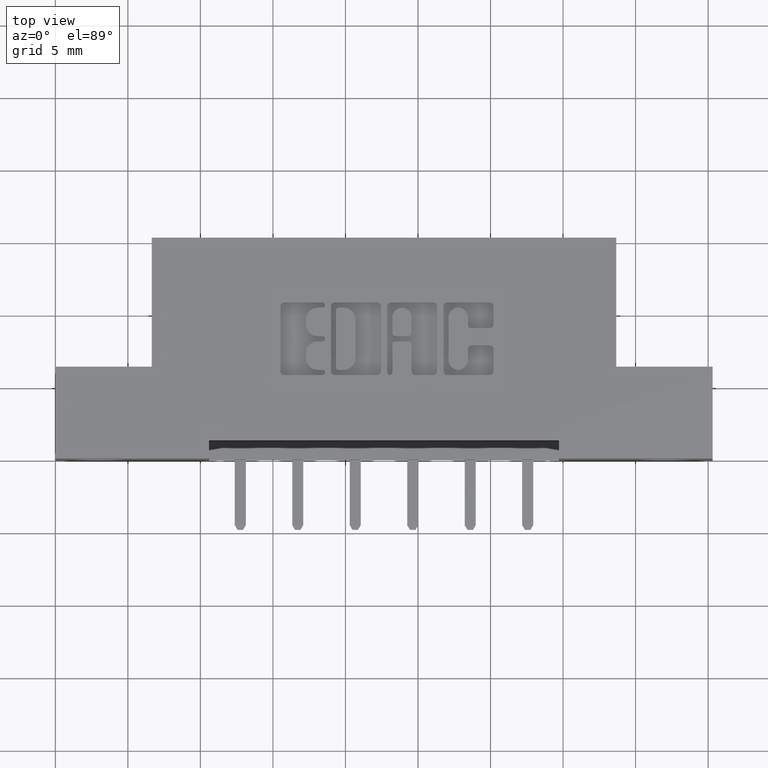
[diagram: clean part render]
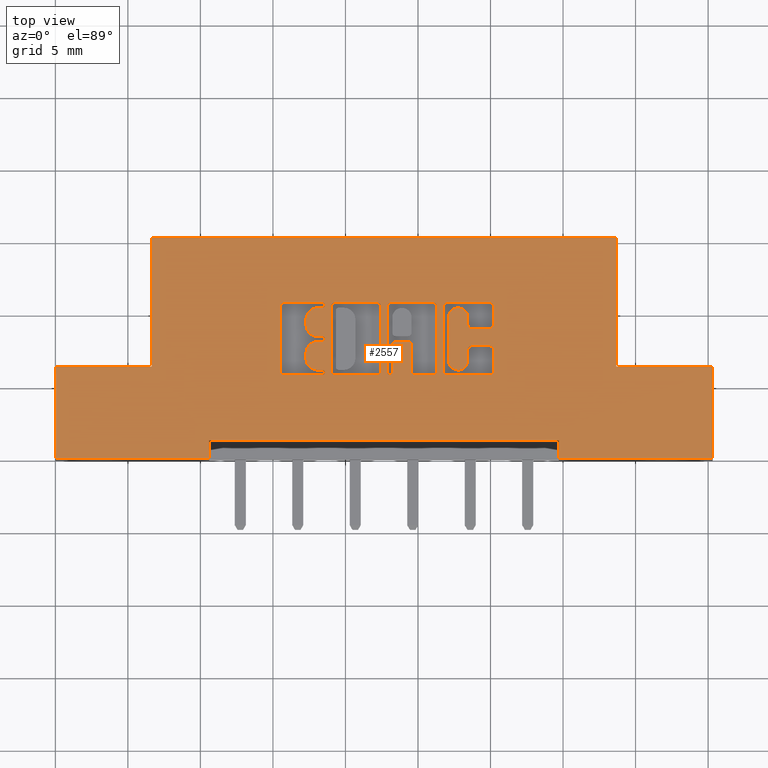
[diagram: same view with one face highlighted and labeled with its STEP entity id]
A machine part, top view. The second image highlights one B-rep face of the part: STEP entity #2557.
In plain terms, the highlighted planar face has unit normal (0, 0, -1).
Its self-contained STEP definition (entity closure, byte-faithful):
#25 = VECTOR ( 'NONE', #2022, 39.37007874015748100 ) ;
#40 = DIRECTION ( 'NONE',  ( 0.0000000000000000000, -1.000000000000000000, 0.0000000000000000000 ) ) ;
#65 = EDGE_CURVE ( 'NONE', #7483, #5534, #4787, .T. ) ;
#74 = CARTESIAN_POINT ( 'NONE',  ( 0.7251336065353351000, 0.2337142671046476800, 0.0000000000000000000 ) ) ;
#83 = EDGE_CURVE ( 'NONE', #6657, #2010, #6764, .T. ) ;
#118 = CARTESIAN_POINT ( 'NONE',  ( 0.7251336065353095600, 0.3250000000000201100, 0.0000000000000000000 ) ) ;
#183 = CARTESIAN_POINT ( 'NONE',  ( 1.053222383097458100, 0.0000000000000000000, 0.0000000000000000000 ) ) ;
#199 = LINE ( 'NONE', #6380, #4181 ) ;
#209 = CARTESIAN_POINT ( 'NONE',  ( 0.2615000000000001200, 0.5999999999999999800, 0.0000000000000000000 ) ) ;
#211 = CARTESIAN_POINT ( 'NONE',  ( 0.7251336065353509700, 0.4094147637527354400, 0.0000000000000000000 ) ) ;
#226 = VERTEX_POINT ( 'NONE', #2080 ) ;
#239 = VERTEX_POINT ( 'NONE', #8214 ) ;
#274 = CARTESIAN_POINT ( 'NONE',  ( 0.7320045756779973700, 0.2337142671046476800, 0.0000000000000000000 ) ) ;
#277 = CARTESIAN_POINT ( 'NONE',  ( 1.188678631909971600, 0.4133410318341945700, 0.0000000000000000000 ) ) ;
#283 = ORIENTED_EDGE ( 'NONE', *, *, #9427, .F. ) ;
#287 = LINE ( 'NONE', #7453, #6491 ) ;
#300 = VECTOR ( 'NONE', #7128, 39.37007874015748100 ) ;
#315 = CARTESIAN_POINT ( 'NONE',  ( 0.7116370600051091800, 0.2719953808994901000, 0.0000000000000000000 ) ) ;
#336 = LINE ( 'NONE', #2064, #1848 ) ;
#342 = DIRECTION ( 'NONE',  ( 1.000000000000000000, 0.0000000000000000000, 0.0000000000000000000 ) ) ;
#353 = DIRECTION ( 'NONE',  ( -0.0000000000000000000, 0.0000000000000000000, 1.000000000000000000 ) ) ;
#371 = DIRECTION ( 'NONE',  ( 1.000000000000000000, 0.0000000000000000000, 0.0000000000000000000 ) ) ;
#394 = DIRECTION ( 'NONE',  ( -0.0000000000000000000, 0.0000000000000000000, 1.000000000000000000 ) ) ;
#400 = LINE ( 'NONE', #6370, #1383 ) ;
#421 = VECTOR ( 'NONE', #6822, 39.37007874015748100 ) ;
#431 = CARTESIAN_POINT ( 'NONE',  ( 0.8735956183678956800, 0.4231567020380507800, 0.0000000000000000000 ) ) ;
#433 = CIRCLE ( 'NONE', #7790, 0.009815670203840084000 ) ;
#495 = EDGE_CURVE ( 'NONE', #7950, #5860, #8939, .T. ) ;
#506 = VERTEX_POINT ( 'NONE', #4428 ) ;
#523 = ORIENTED_EDGE ( 'NONE', *, *, #3593, .T. ) ;
#533 = CARTESIAN_POINT ( 'NONE',  ( 0.7116370600050836400, 0.3181290308573565500, 0.0000000000000000000 ) ) ;
#543 = VECTOR ( 'NONE', #4309, 39.37007874015748100 ) ;
#551 = ORIENTED_EDGE ( 'NONE', *, *, #2189, .F. ) ;
#574 = CARTESIAN_POINT ( 'NONE',  ( 0.9143306497136465300, 0.3083133606535453100, 0.0000000000000000000 ) ) ;
#582 = CARTESIAN_POINT ( 'NONE',  ( 1.119478156973178700, 0.0000000000000000000, 0.0000000000000000000 ) ) ;
#590 = DIRECTION ( 'NONE',  ( 1.000000000000000000, 0.0000000000000000000, 0.0000000000000000000 ) ) ;
#686 = DIRECTION ( 'NONE',  ( 0.0000000000000000000, -1.000000000000000000, 0.0000000000000000000 ) ) ;
#693 = EDGE_CURVE ( 'NONE', #4471, #6657, #7811, .T. ) ;
#715 = VERTEX_POINT ( 'NONE', #9376 ) ;
#781 = EDGE_CURVE ( 'NONE', #1642, #8523, #1366, .T. ) ;
#804 = VECTOR ( 'NONE', #4935, 39.37007874015748100 ) ;
#812 = AXIS2_PLACEMENT_3D ( 'NONE', #2226, #7454, #2979 ) ;
#830 = VERTEX_POINT ( 'NONE', #5482 ) ;
#857 = VERTEX_POINT ( 'NONE', #3357 ) ;
#863 = VERTEX_POINT ( 'NONE', #4177 ) ;
#865 = DIRECTION ( 'NONE',  ( 1.000000000000000000, 0.0000000000000000000, 0.0000000000000000000 ) ) ;
#870 = DIRECTION ( 'NONE',  ( 1.000000000000000000, 0.0000000000000000000, 0.0000000000000000000 ) ) ;
#879 = EDGE_CURVE ( 'NONE', #5562, #2332, #8369, .T. ) ;
#896 = CARTESIAN_POINT ( 'NONE',  ( 0.7577707099629755700, 0.2268432979619829400, 0.0000000000000000000 ) ) ;
#901 = VECTOR ( 'NONE', #5372, 39.37007874015748100 ) ;
#911 = EDGE_CURVE ( 'NONE', #9290, #8523, #4432, .T. ) ;
#943 = EDGE_CURVE ( 'NONE', #2279, #5288, #9393, .T. ) ;
#968 = LINE ( 'NONE', #7753, #4260 ) ;
#985 = AXIS2_PLACEMENT_3D ( 'NONE', #9273, #4870, #371 ) ;
#997 = LINE ( 'NONE', #8017, #543 ) ;
#1010 = VECTOR ( 'NONE', #8657, 39.37007874015748100 ) ;
#1022 = ORIENTED_EDGE ( 'NONE', *, *, #2823, .F. ) ;
#1027 = AXIS2_PLACEMENT_3D ( 'NONE', #3047, #8255, #3816 ) ;
#1034 = DIRECTION ( 'NONE',  ( 1.000000000000000000, 0.0000000000000000000, 0.0000000000000000000 ) ) ;
#1047 = VECTOR ( 'NONE', #5826, 39.37007874015748100 ) ;
#1053 = ORIENTED_EDGE ( 'NONE', *, *, #83, .F. ) ;
#1084 = LINE ( 'NONE', #9057, #4860 ) ;
#1087 = VECTOR ( 'NONE', #1982, 39.37007874015748100 ) ;
#1088 = CIRCLE ( 'NONE', #8526, 0.009815670203788042300 ) ;
#1106 = ORIENTED_EDGE ( 'NONE', *, *, #65, .F. ) ;
#1117 = CARTESIAN_POINT ( 'NONE',  ( 0.7479550397591688800, 0.2366589681657896800, 0.0000000000000000000 ) ) ;
#1121 = DIRECTION ( 'NONE',  ( 1.000000000000000000, 0.0000000000000000000, 0.0000000000000000000 ) ) ;
#1143 = CARTESIAN_POINT ( 'NONE',  ( 0.4174999999999998700, 0.0000000000000000000, 0.0000000000000000000 ) ) ;
#1149 = CARTESIAN_POINT ( 'NONE',  ( 1.093221239177991900, 0.3831578459575293300, 0.0000000000000000000 ) ) ;
#1161 = DIRECTION ( 'NONE',  ( -1.000000000000000000, 0.0000000000000000000, 0.0000000000000000000 ) ) ;
#1192 = ORIENTED_EDGE ( 'NONE', *, *, #8260, .F. ) ;
#1215 = CARTESIAN_POINT ( 'NONE',  ( 0.0000000000000000000, 0.5999999999999999800, 0.0000000000000000000 ) ) ;
#1247 = EDGE_CURVE ( 'NONE', #863, #226, #9048, .T. ) ;
#1284 = CARTESIAN_POINT ( 'NONE',  ( 1.036044960240806400, 0.0000000000000000000, 0.0000000000000000000 ) ) ;
#1286 = ORIENTED_EDGE ( 'NONE', *, *, #1379, .F. ) ;
#1308 = CARTESIAN_POINT ( 'NONE',  ( 0.6208421106199376600, 0.4133410318342098400, 0.0000000000000000000 ) ) ;
#1314 = ORIENTED_EDGE ( 'NONE', *, *, #6281, .T. ) ;
#1320 = CIRCLE ( 'NONE', #9514, 0.006870969142648433200 ) ;
#1322 = EDGE_CURVE ( 'NONE', #5534, #7758, #433, .T. ) ;
#1332 = FACE_BOUND ( 'NONE', #6235, .T. ) ;
#1347 = DIRECTION ( 'NONE',  ( 1.000000000000000000, 0.0000000000000000000, 0.0000000000000000000 ) ) ;
#1352 = ORIENTED_EDGE ( 'NONE', *, *, #5245, .F. ) ;
#1366 = CIRCLE ( 'NONE', #9620, 0.03141014465218178200 ) ;
#1370 = CARTESIAN_POINT ( 'NONE',  ( 0.4174999999999999800, 0.05000000000000000300, 0.0000000000000000000 ) ) ;
#1379 = EDGE_CURVE ( 'NONE', #7394, #863, #9384, .T. ) ;
#1383 = VECTOR ( 'NONE', #7102, 39.37007874015748100 ) ;
#1437 = EDGE_CURVE ( 'NONE', #4482, #1916, #5488, .T. ) ;
#1478 = DIRECTION ( 'NONE',  ( -0.0000000000000000000, 0.0000000000000000000, 1.000000000000000000 ) ) ;
#1506 = DIRECTION ( 'NONE',  ( -0.0000000000000000000, -1.000000000000000000, -0.0000000000000000000 ) ) ;
#1511 = CARTESIAN_POINT ( 'NONE',  ( 0.0000000000000000000, 0.2268432979619843800, 0.0000000000000000000 ) ) ;
#1529 = DIRECTION ( 'NONE',  ( 1.000000000000000000, 0.0000000000000000000, 0.0000000000000000000 ) ) ;
#1562 = ORIENTED_EDGE ( 'NONE', *, *, #2734, .F. ) ;
#1567 = DIRECTION ( 'NONE',  ( -0.0000000000000000000, 0.0000000000000000000, 1.000000000000000000 ) ) ;
#1609 = DIRECTION ( 'NONE',  ( -0.0000000000000000000, 0.0000000000000000000, 1.000000000000000000 ) ) ;
#1633 = ORIENTED_EDGE ( 'NONE', *, *, #8677, .F. ) ;
#1641 = CIRCLE ( 'NONE', #2446, 0.009815670203805798900 ) ;
#1642 = VERTEX_POINT ( 'NONE', #7928 ) ;
#1645 = DIRECTION ( 'NONE',  ( 1.000000000000000000, 7.203446383881654600E-015, 0.0000000000000000000 ) ) ;
#1649 = ORIENTED_EDGE ( 'NONE', *, *, #1322, .F. ) ;
#1654 = VERTEX_POINT ( 'NONE', #5335 ) ;
#1660 = ORIENTED_EDGE ( 'NONE', *, *, #9465, .F. ) ;
#1680 = CIRCLE ( 'NONE', #7869, 0.009815670203840767500 ) ;
#1702 = EDGE_CURVE ( 'NONE', #7595, #7823, #4890, .T. ) ;
#1706 = DIRECTION ( 'NONE',  ( 1.000000000000000000, 0.0000000000000000000, 0.0000000000000000000 ) ) ;
#1721 = CARTESIAN_POINT ( 'NONE',  ( 0.2615000000000001200, 0.2500000000000000000, 0.0000000000000000000 ) ) ;
#1728 = DIRECTION ( 'NONE',  ( -0.0000000000000000000, 0.0000000000000000000, 1.000000000000000000 ) ) ;
#1733 = DIRECTION ( 'NONE',  ( 1.000000000000000000, 0.0000000000000000000, 0.0000000000000000000 ) ) ;
#1752 = ORIENTED_EDGE ( 'NONE', *, *, #8555, .F. ) ;
#1758 = CARTESIAN_POINT ( 'NONE',  ( 0.6110264404161149800, 0.0000000000000000000, 0.0000000000000000000 ) ) ;
#1761 = CARTESIAN_POINT ( 'NONE',  ( 1.036044960240806400, 0.2366589681657806100, 0.0000000000000000000 ) ) ;
#1801 = CARTESIAN_POINT ( 'NONE',  ( 0.9668444853039842600, 0.2366589681657875800, 0.0000000000000000000 ) ) ;
#1803 = VECTOR ( 'NONE', #7155, 39.37007874015748100 ) ;
#1822 = CIRCLE ( 'NONE', #6162, 0.03141014465217454400 ) ;
#1832 = CARTESIAN_POINT ( 'NONE',  ( -2.860952991549581900E-014, 0.2405852362472237200, 0.0000000000000000000 ) ) ;
#1848 = VECTOR ( 'NONE', #5098, 39.37007874015748100 ) ;
#1875 = VERTEX_POINT ( 'NONE', #8790 ) ;
#1876 = CARTESIAN_POINT ( 'NONE',  ( 1.784000000000000500, 0.5999999999999999800, 0.0000000000000000000 ) ) ;
#1882 = ORIENTED_EDGE ( 'NONE', *, *, #911, .F. ) ;
#1916 = VERTEX_POINT ( 'NONE', #1761 ) ;
#1919 = DIRECTION ( 'NONE',  ( 1.000000000000000000, 0.0000000000000000000, 0.0000000000000000000 ) ) ;
#1932 = CARTESIAN_POINT ( 'NONE',  ( 0.4174999999999999800, 0.05000000000000000300, 0.0000000000000000000 ) ) ;
#1943 = CIRCLE ( 'NONE', #7832, 0.02625691779517367100 ) ;
#1955 = DIRECTION ( 'NONE',  ( -0.0000000000000000000, 0.0000000000000000000, 1.000000000000000000 ) ) ;
#1977 = CARTESIAN_POINT ( 'NONE',  ( 1.129293827176966600, 0.2965345564089693100, 0.0000000000000000000 ) ) ;
#1982 = DIRECTION ( 'NONE',  ( -0.0000000000000000000, -1.000000000000000000, -0.0000000000000000000 ) ) ;
#2010 = VERTEX_POINT ( 'NONE', #209 ) ;
#2017 = VECTOR ( 'NONE', #5835, 39.37007874015748100 ) ;
#2022 = DIRECTION ( 'NONE',  ( 0.0000000000000000000, 1.000000000000000000, -0.0000000000000000000 ) ) ;
#2023 = EDGE_CURVE ( 'NONE', #830, #9244, #4058, .T. ) ;
#2064 = CARTESIAN_POINT ( 'NONE',  ( 1.066964321382817900, 0.0000000000000000000, 0.0000000000000000000 ) ) ;
#2077 = VECTOR ( 'NONE', #1034, 39.37007874015748100 ) ;
#2080 = CARTESIAN_POINT ( 'NONE',  ( 0.6110264404161149800, 0.4133410318342098400, 0.0000000000000000000 ) ) ;
#2083 = VERTEX_POINT ( 'NONE', #2161 ) ;
#2090 = CARTESIAN_POINT ( 'NONE',  ( 0.7479550397591688800, 0.4133410318342098400, 0.0000000000000000000 ) ) ;
#2114 = CARTESIAN_POINT ( 'NONE',  ( 1.026229290037010000, 0.2268432979619843800, 0.0000000000000000000 ) ) ;
#2115 = AXIS2_PLACEMENT_3D ( 'NONE', #4891, #394, #5638 ) ;
#2143 = VERTEX_POINT ( 'NONE', #6014 ) ;
#2151 = EDGE_CURVE ( 'NONE', #5562, #7031, #6859, .T. ) ;
#2161 = CARTESIAN_POINT ( 'NONE',  ( 0.7320045756779992600, 0.4162857328953860100, 0.0000000000000000000 ) ) ;
#2177 = CIRCLE ( 'NONE', #6653, 0.009815670203803340800 ) ;
#2189 = EDGE_CURVE ( 'NONE', #5754, #2571, #3111, .T. ) ;
#2207 = CARTESIAN_POINT ( 'NONE',  ( 0.7479550397591688800, 0.0000000000000000000, 0.0000000000000000000 ) ) ;
#2226 = CARTESIAN_POINT ( 'NONE',  ( 1.178862961706152600, 0.2965345564089702000, 0.0000000000000000000 ) ) ;
#2234 = ORIENTED_EDGE ( 'NONE', *, *, #1702, .T. ) ;
#2260 = ORIENTED_EDGE ( 'NONE', *, *, #3739, .F. ) ;
#2279 = VERTEX_POINT ( 'NONE', #6524 ) ;
#2288 = DIRECTION ( 'NONE',  ( -1.000000000000000000, 0.0000000000000000000, 0.0000000000000000000 ) ) ;
#2300 = LINE ( 'NONE', #4142, #300 ) ;
#2332 = VERTEX_POINT ( 'NONE', #7794 ) ;
#2365 = ORIENTED_EDGE ( 'NONE', *, *, #781, .T. ) ;
#2378 = AXIS2_PLACEMENT_3D ( 'NONE', #4664, #4631, #4869 ) ;
#2381 = VERTEX_POINT ( 'NONE', #3724 ) ;
#2408 = CARTESIAN_POINT ( 'NONE',  ( 0.0000000000000000000, 0.3318709691426836000, 0.0000000000000000000 ) ) ;
#2419 = LINE ( 'NONE', #6085, #421 ) ;
#2446 = AXIS2_PLACEMENT_3D ( 'NONE', #3805, #8972, #4556 ) ;
#2482 = VERTEX_POINT ( 'NONE', #9345 ) ;
#2499 = LINE ( 'NONE', #1758, #8203 ) ;
#2528 = DIRECTION ( 'NONE',  ( 0.0000000000000000000, -1.000000000000000000, 0.0000000000000000000 ) ) ;
#2546 = DIRECTION ( 'NONE',  ( -0.0000000000000000000, 0.0000000000000000000, 1.000000000000000000 ) ) ;
#2557 = ADVANCED_FACE ( 'NONE', ( #1332, #3337, #5355, #9022, #7070 ), #7535, .F. ) ;
#2571 = VERTEX_POINT ( 'NONE', #8770 ) ;
#2598 = CIRCLE ( 'NONE', #812, 0.009815670203787086500 ) ;
#2599 = CARTESIAN_POINT ( 'NONE',  ( 0.9766601555077852900, 0.2268432979619843800, 0.0000000000000000000 ) ) ;
#2602 = ORIENTED_EDGE ( 'NONE', *, *, #5364, .F. ) ;
#2633 = ORIENTED_EDGE ( 'NONE', *, *, #5782, .F. ) ;
#2636 = CARTESIAN_POINT ( 'NONE',  ( 0.0000000000000000000, 0.2500000000000000000, 0.0000000000000000000 ) ) ;
#2645 = VERTEX_POINT ( 'NONE', #2599 ) ;
#2648 = CARTESIAN_POINT ( 'NONE',  ( 1.066964321382817900, 0.3831578459575293300, 0.0000000000000000000 ) ) ;
#2686 = VERTEX_POINT ( 'NONE', #8337 ) ;
#2709 = VERTEX_POINT ( 'NONE', #6909 ) ;
#2734 = EDGE_CURVE ( 'NONE', #4945, #1654, #5463, .T. ) ;
#2743 = CARTESIAN_POINT ( 'NONE',  ( 0.7577707099630097700, 0.4133410318342098400, 0.0000000000000000000 ) ) ;
#2746 = CARTESIAN_POINT ( 'NONE',  ( 0.6802269153529273400, 0.0000000000000000000, 0.0000000000000000000 ) ) ;
#2760 = DIRECTION ( 'NONE',  ( 1.000000000000000000, 0.0000000000000000000, 0.0000000000000000000 ) ) ;
#2802 = ORIENTED_EDGE ( 'NONE', *, *, #4582, .F. ) ;
#2804 = ORIENTED_EDGE ( 'NONE', *, *, #5916, .F. ) ;
#2810 = DIRECTION ( 'NONE',  ( -0.0000000000000000000, 0.0000000000000000000, 1.000000000000000000 ) ) ;
#2823 = EDGE_CURVE ( 'NONE', #6328, #2279, #6729, .T. ) ;
#2834 = EDGE_CURVE ( 'NONE', #4471, #3549, #8674, .T. ) ;
#2839 = ORIENTED_EDGE ( 'NONE', *, *, #1437, .F. ) ;
#2876 = VECTOR ( 'NONE', #1733, 39.37007874015748100 ) ;
#2879 = VECTOR ( 'NONE', #2288, 39.37007874015748100 ) ;
#2892 = EDGE_CURVE ( 'NONE', #6455, #9180, #287, .T. ) ;
#2920 = VERTEX_POINT ( 'NONE', #8060 ) ;
#2964 = DIRECTION ( 'NONE',  ( -0.0000000000000000000, 0.0000000000000000000, 1.000000000000000000 ) ) ;
#2979 = DIRECTION ( 'NONE',  ( 1.000000000000000000, 0.0000000000000000000, 0.0000000000000000000 ) ) ;
#2994 = VECTOR ( 'NONE', #7210, 39.37007874015748100 ) ;
#3020 = EDGE_CURVE ( 'NONE', #9191, #6205, #1084, .T. ) ;
#3029 = EDGE_CURVE ( 'NONE', #7517, #2083, #1320, .T. ) ;
#3045 = ORIENTED_EDGE ( 'NONE', *, *, #6336, .T. ) ;
#3047 = CARTESIAN_POINT ( 'NONE',  ( 1.178862961706133900, 0.2366589681657896800, 0.0000000000000000000 ) ) ;
#3068 = CARTESIAN_POINT ( 'NONE',  ( 0.7116370600051249400, 0.3780046191005195200, 0.0000000000000000000 ) ) ;
#3083 = EDGE_CURVE ( 'NONE', #5054, #506, #6372, .T. ) ;
#3090 = VERTEX_POINT ( 'NONE', #4506 ) ;
#3111 = LINE ( 'NONE', #9576, #2876 ) ;
#3112 = DIRECTION ( 'NONE',  ( -0.0000000000000000000, 0.0000000000000000000, 1.000000000000000000 ) ) ;
#3124 = DIRECTION ( 'NONE',  ( 1.000000000000000000, 0.0000000000000000000, 0.0000000000000000000 ) ) ;
#3136 = ORIENTED_EDGE ( 'NONE', *, *, #7001, .T. ) ;
#3137 = DIRECTION ( 'NONE',  ( 1.000000000000000000, 0.0000000000000000000, 0.0000000000000000000 ) ) ;
#3146 = CARTESIAN_POINT ( 'NONE',  ( 1.026229290037010000, 0.2366589681657806100, 0.0000000000000000000 ) ) ;
#3148 = DIRECTION ( 'NONE',  ( -0.0000000000000000000, 0.0000000000000000000, 1.000000000000000000 ) ) ;
#3156 = CARTESIAN_POINT ( 'NONE',  ( 0.9241463199174497800, 0.3083133606535453100, 0.0000000000000000000 ) ) ;
#3177 = LINE ( 'NONE', #7135, #4948 ) ;
#3182 = CARTESIAN_POINT ( 'NONE',  ( 1.178862961706166800, 0.3637718973050383900, 0.0000000000000000000 ) ) ;
#3186 = ORIENTED_EDGE ( 'NONE', *, *, #5598, .F. ) ;
#3189 = DIRECTION ( 'NONE',  ( -0.0000000000000000000, 0.0000000000000000000, 1.000000000000000000 ) ) ;
#3196 = EDGE_CURVE ( 'NONE', #9180, #3895, #3686, .T. ) ;
#3202 = EDGE_CURVE ( 'NONE', #6935, #6328, #1680, .T. ) ;
#3241 = VECTOR ( 'NONE', #686, 39.37007874015748100 ) ;
#3270 = DIRECTION ( 'NONE',  ( 1.000000000000000000, 0.0000000000000000000, 0.0000000000000000000 ) ) ;
#3315 = CIRCLE ( 'NONE', #2115, 0.009815670203796920600 ) ;
#3329 = LINE ( 'NONE', #1932, #1803 ) ;
#3337 = FACE_BOUND ( 'NONE', #3402, .T. ) ;
#3341 = CARTESIAN_POINT ( 'NONE',  ( 1.188678631909939600, 0.2366589681657827200, 0.0000000000000000000 ) ) ;
#3357 = CARTESIAN_POINT ( 'NONE',  ( 0.6110264404161149800, 0.2366589681657896800, 0.0000000000000000000 ) ) ;
#3381 = EDGE_CURVE ( 'NONE', #3090, #4455, #6254, .T. ) ;
#3385 = ORIENTED_EDGE ( 'NONE', *, *, #4659, .T. ) ;
#3402 = EDGE_LOOP ( 'NONE', ( #3385, #5882, #9304, #8277, #1562, #2602, #551, #1314, #6890, #2365, #1882, #7475, #5964, #3628, #3802, #3449, #6191, #1286, #283, #6985, #8279 ) ) ;
#3413 = VECTOR ( 'NONE', #9167, 39.37007874015748100 ) ;
#3423 = CARTESIAN_POINT ( 'NONE',  ( 0.9143306497136465300, 0.2337142671046476800, 0.0000000000000000000 ) ) ;
#3449 = ORIENTED_EDGE ( 'NONE', *, *, #4154, .F. ) ;
#3463 = DIRECTION ( 'NONE',  ( 1.000000000000000000, 0.0000000000000000000, 0.0000000000000000000 ) ) ;
#3479 = DIRECTION ( 'NONE',  ( -0.0000000000000000000, 0.0000000000000000000, 1.000000000000000000 ) ) ;
#3486 = DIRECTION ( 'NONE',  ( 0.0000000000000000000, 0.0000000000000000000, -1.000000000000000000 ) ) ;
#3492 = CARTESIAN_POINT ( 'NONE',  ( 0.7577707099629755700, 0.2366589681657896800, 0.0000000000000000000 ) ) ;
#3494 = DIRECTION ( 'NONE',  ( 1.000000000000000000, 0.0000000000000000000, 0.0000000000000000000 ) ) ;
#3500 = DIRECTION ( 'NONE',  ( -0.0000000000000000000, 0.0000000000000000000, 1.000000000000000000 ) ) ;
#3546 = CARTESIAN_POINT ( 'NONE',  ( 1.129293827176977000, 0.3637718973050449400, 0.0000000000000000000 ) ) ;
#3549 = VERTEX_POINT ( 'NONE', #3955 ) ;
#3572 = CIRCLE ( 'NONE', #7047, 0.006870969142648433200 ) ;
#3584 = EDGE_LOOP ( 'NONE', ( #5549, #8985, #3045, #2839, #5061, #7497, #2234, #6710, #3927, #6436, #5637, #4363, #7707, #3186 ) ) ;
#3593 = EDGE_CURVE ( 'NONE', #7416, #5915, #4270, .T. ) ;
#3598 = EDGE_CURVE ( 'NONE', #4958, #4048, #8442, .T. ) ;
#3611 = EDGE_CURVE ( 'NONE', #6203, #7483, #4042, .T. ) ;
#3621 = DIRECTION ( 'NONE',  ( 1.000000000000000000, 0.0000000000000000000, 0.0000000000000000000 ) ) ;
#3628 = ORIENTED_EDGE ( 'NONE', *, *, #5419, .F. ) ;
#3637 = AXIS2_PLACEMENT_3D ( 'NONE', #7960, #3500, #8696 ) ;
#3642 = DIRECTION ( 'NONE',  ( -0.0000000000000000000, 0.0000000000000000000, 1.000000000000000000 ) ) ;
#3658 = CARTESIAN_POINT ( 'NONE',  ( 1.093221239177998300, 0.2668421540424527600, 0.0000000000000000000 ) ) ;
#3686 = CIRCLE ( 'NONE', #6877, 0.009815670203803203800 ) ;
#3724 = CARTESIAN_POINT ( 'NONE',  ( 1.522500000000001100, 0.5999999999999999800, -1.704402182713329600E-016 ) ) ;
#3739 = EDGE_CURVE ( 'NONE', #4455, #2482, #5346, .T. ) ;
#3775 = LINE ( 'NONE', #9503, #9439 ) ;
#3780 = ORIENTED_EDGE ( 'NONE', *, *, #3202, .F. ) ;
#3802 = ORIENTED_EDGE ( 'NONE', *, *, #6519, .F. ) ;
#3805 = CARTESIAN_POINT ( 'NONE',  ( 0.6208421106199217800, 0.2366589681657896800, 0.0000000000000000000 ) ) ;
#3816 = DIRECTION ( 'NONE',  ( 1.000000000000000000, 0.0000000000000000000, 0.0000000000000000000 ) ) ;
#3829 = VERTEX_POINT ( 'NONE', #1143 ) ;
#3833 = DIRECTION ( 'NONE',  ( 1.000000000000000000, 0.0000000000000000000, 0.0000000000000000000 ) ) ;
#3846 = VECTOR ( 'NONE', #8540, 39.37007874015748100 ) ;
#3867 = AXIS2_PLACEMENT_3D ( 'NONE', #3146, #1609, #865 ) ;
#3895 = VERTEX_POINT ( 'NONE', #574 ) ;
#3927 = ORIENTED_EDGE ( 'NONE', *, *, #2892, .T. ) ;
#3955 = CARTESIAN_POINT ( 'NONE',  ( 0.0000000000000000000, 0.0000000000000000000, 0.0000000000000000000 ) ) ;
#4017 = VECTOR ( 'NONE', #8243, 39.37007874015748100 ) ;
#4040 = EDGE_CURVE ( 'NONE', #3895, #7031, #5677, .T. ) ;
#4042 = CIRCLE ( 'NONE', #9145, 0.009815670203804980100 ) ;
#4048 = VERTEX_POINT ( 'NONE', #896 ) ;
#4053 = CARTESIAN_POINT ( 'NONE',  ( 1.063038053301298900, 0.4231567020380507800, 0.0000000000000000000 ) ) ;
#4058 = CIRCLE ( 'NONE', #6128, 0.006870969142662229500 ) ;
#4142 = CARTESIAN_POINT ( 'NONE',  ( 0.0000000000000000000, 0.4231567020380507800, 0.0000000000000000000 ) ) ;
#4154 = EDGE_CURVE ( 'NONE', #226, #857, #2499, .T. ) ;
#4168 = EDGE_CURVE ( 'NONE', #8042, #7517, #968, .T. ) ;
#4177 = CARTESIAN_POINT ( 'NONE',  ( 0.6208421106199376600, 0.4231567020380324600, 0.0000000000000000000 ) ) ;
#4181 = VECTOR ( 'NONE', #1121, 39.37007874015748100 ) ;
#4184 = DIRECTION ( 'NONE',  ( 1.000000000000000000, 0.0000000000000000000, 0.0000000000000000000 ) ) ;
#4210 = DIRECTION ( 'NONE',  ( -0.0000000000000000000, 0.0000000000000000000, 1.000000000000000000 ) ) ;
#4216 = ORIENTED_EDGE ( 'NONE', *, *, #9505, .F. ) ;
#4221 = VERTEX_POINT ( 'NONE', #3341 ) ;
#4260 = VECTOR ( 'NONE', #3270, 39.37007874015748100 ) ;
#4268 = AXIS2_PLACEMENT_3D ( 'NONE', #8649, #4210, #9383 ) ;
#4270 = CIRCLE ( 'NONE', #7181, 0.02625691779518022500 ) ;
#4272 = EDGE_CURVE ( 'NONE', #7823, #6455, #3315, .T. ) ;
#4290 = CARTESIAN_POINT ( 'NONE',  ( 1.053222383097458100, 0.4133410318342098400, 0.0000000000000000000 ) ) ;
#4296 = DIRECTION ( 'NONE',  ( 1.000000000000000000, 0.0000000000000000000, 0.0000000000000000000 ) ) ;
#4309 = DIRECTION ( 'NONE',  ( 1.000000000000000000, 0.0000000000000000000, 0.0000000000000000000 ) ) ;
#4363 = ORIENTED_EDGE ( 'NONE', *, *, #2151, .F. ) ;
#4372 = CARTESIAN_POINT ( 'NONE',  ( 0.0000000000000000000, 0.4231567020380324600, 0.0000000000000000000 ) ) ;
#4413 = DIRECTION ( 'NONE',  ( 1.000000000000000000, 0.0000000000000000000, 0.0000000000000000000 ) ) ;
#4428 = CARTESIAN_POINT ( 'NONE',  ( 1.026229290037013600, 0.4231567020380063200, 0.0000000000000000000 ) ) ;
#4432 = LINE ( 'NONE', #1832, #5719 ) ;
#4455 = VERTEX_POINT ( 'NONE', #5823 ) ;
#4457 = EDGE_CURVE ( 'NONE', #7512, #5915, #9575, .T. ) ;
#4467 = DIRECTION ( 'NONE',  ( -0.0000000000000000000, 0.0000000000000000000, 1.000000000000000000 ) ) ;
#4471 = VERTEX_POINT ( 'NONE', #6601 ) ;
#4482 = VERTEX_POINT ( 'NONE', #2114 ) ;
#4487 = LINE ( 'NONE', #5987, #8419 ) ;
#4506 = CARTESIAN_POINT ( 'NONE',  ( 1.522500000000001100, 0.2500000000000000000, -1.704402182713329600E-016 ) ) ;
#4539 = CARTESIAN_POINT ( 'NONE',  ( 0.7251336065353507500, 0.4231567020380324600, 0.0000000000000000000 ) ) ;
#4556 = DIRECTION ( 'NONE',  ( 1.000000000000000000, 0.0000000000000000000, 0.0000000000000000000 ) ) ;
#4558 = VECTOR ( 'NONE', #8457, 39.37007874015748100 ) ;
#4582 = EDGE_CURVE ( 'NONE', #7709, #7731, #4487, .T. ) ;
#4619 = DIRECTION ( 'NONE',  ( -0.0000000000000000000, 0.0000000000000000000, 1.000000000000000000 ) ) ;
#4620 = EDGE_CURVE ( 'NONE', #6205, #2482, #6011, .T. ) ;
#4630 = CIRCLE ( 'NONE', #9509, 0.009815670203811535700 ) ;
#4631 = DIRECTION ( 'NONE',  ( -0.0000000000000000000, 0.0000000000000000000, 1.000000000000000000 ) ) ;
#4659 = EDGE_CURVE ( 'NONE', #8042, #5860, #4724, .T. ) ;
#4664 = CARTESIAN_POINT ( 'NONE',  ( 1.026229290037011100, 0.4133410318342101200, 0.0000000000000000000 ) ) ;
#4695 = CARTESIAN_POINT ( 'NONE',  ( 1.119478156973178700, 0.2965345564089684200, 0.0000000000000000000 ) ) ;
#4724 = CIRCLE ( 'NONE', #6446, 0.03141014465221592800 ) ;
#4742 = VECTOR ( 'NONE', #40, 39.37007874015748100 ) ;
#4754 = AXIS2_PLACEMENT_3D ( 'NONE', #6022, #3486, #6009 ) ;
#4787 = LINE ( 'NONE', #7000, #804 ) ;
#4805 = CIRCLE ( 'NONE', #4268, 0.006870969142662229500 ) ;
#4860 = VECTOR ( 'NONE', #9035, 39.37007874015748100 ) ;
#4869 = DIRECTION ( 'NONE',  ( 1.000000000000000000, 0.0000000000000000000, 0.0000000000000000000 ) ) ;
#4870 = DIRECTION ( 'NONE',  ( -0.0000000000000000000, 0.0000000000000000000, 1.000000000000000000 ) ) ;
#4889 = CARTESIAN_POINT ( 'NONE',  ( 0.6802269153529090200, 0.0000000000000000000, 0.0000000000000000000 ) ) ;
#4890 = LINE ( 'NONE', #6897, #901 ) ;
#4891 = CARTESIAN_POINT ( 'NONE',  ( 0.9570288151001873400, 0.3083133606535525300, 0.0000000000000000000 ) ) ;
#4902 = CARTESIAN_POINT ( 'NONE',  ( 1.188678631909939600, 0.2965345564089702000, 0.0000000000000000000 ) ) ;
#4935 = DIRECTION ( 'NONE',  ( 0.0000000000000000000, 1.000000000000000000, -0.0000000000000000000 ) ) ;
#4936 = VERTEX_POINT ( 'NONE', #2648 ) ;
#4945 = VERTEX_POINT ( 'NONE', #7857 ) ;
#4948 = VECTOR ( 'NONE', #4184, 39.37007874015748100 ) ;
#4949 = ORIENTED_EDGE ( 'NONE', *, *, #9166, .F. ) ;
#4953 = DIRECTION ( 'NONE',  ( 0.0000000000000000000, 1.000000000000000000, -0.0000000000000000000 ) ) ;
#4956 = CARTESIAN_POINT ( 'NONE',  ( 0.7577707099630097700, 0.4231567020380507800, 0.0000000000000000000 ) ) ;
#4958 = VERTEX_POINT ( 'NONE', #1117 ) ;
#4981 = EDGE_CURVE ( 'NONE', #4048, #6428, #3177, .T. ) ;
#5054 = VERTEX_POINT ( 'NONE', #5746 ) ;
#5061 = ORIENTED_EDGE ( 'NONE', *, *, #8612, .T. ) ;
#5079 = DIRECTION ( 'NONE',  ( 0.0000000000000000000, -1.000000000000000000, 0.0000000000000000000 ) ) ;
#5090 = DIRECTION ( 'NONE',  ( 1.000000000000000000, 0.0000000000000000000, 0.0000000000000000000 ) ) ;
#5098 = DIRECTION ( 'NONE',  ( 0.0000000000000000000, 1.000000000000000000, -0.0000000000000000000 ) ) ;
#5104 = DIRECTION ( 'NONE',  ( -0.0000000000000000000, 0.0000000000000000000, 1.000000000000000000 ) ) ;
#5113 = CARTESIAN_POINT ( 'NONE',  ( 0.7251336065353507500, 0.4162857328953860100, 0.0000000000000000000 ) ) ;
#5165 = AXIS2_PLACEMENT_3D ( 'NONE', #7440, #2964, #8166 ) ;
#5211 = VECTOR ( 'NONE', #7590, 39.37007874015748100 ) ;
#5217 = AXIS2_PLACEMENT_3D ( 'NONE', #118, #5378, #870 ) ;
#5224 = CARTESIAN_POINT ( 'NONE',  ( 0.8735956183678617000, 0.2268432979619829400, 0.0000000000000000000 ) ) ;
#5228 = CIRCLE ( 'NONE', #1027, 0.009815670203806345400 ) ;
#5245 = EDGE_CURVE ( 'NONE', #9543, #4958, #8654, .T. ) ;
#5263 = LINE ( 'NONE', #2408, #9162 ) ;
#5268 = AXIS2_PLACEMENT_3D ( 'NONE', #8009, #2546, #8104 ) ;
#5288 = VERTEX_POINT ( 'NONE', #8934 ) ;
#5306 = AXIS2_PLACEMENT_3D ( 'NONE', #1308, #4619, #1347 ) ;
#5335 = CARTESIAN_POINT ( 'NONE',  ( 0.7251336065353095600, 0.3318709691426836000, 0.0000000000000000000 ) ) ;
#5346 = LINE ( 'NONE', #1876, #1087 ) ;
#5355 = FACE_OUTER_BOUND ( 'NONE', #9363, .T. ) ;
#5364 = EDGE_CURVE ( 'NONE', #2571, #4945, #5772, .T. ) ;
#5372 = DIRECTION ( 'NONE',  ( 0.0000000000000000000, 1.000000000000000000, -0.0000000000000000000 ) ) ;
#5378 = DIRECTION ( 'NONE',  ( -0.0000000000000000000, 0.0000000000000000000, 1.000000000000000000 ) ) ;
#5418 = ORIENTED_EDGE ( 'NONE', *, *, #9408, .F. ) ;
#5419 = EDGE_CURVE ( 'NONE', #7074, #830, #7273, .T. ) ;
#5453 = ORIENTED_EDGE ( 'NONE', *, *, #7909, .F. ) ;
#5463 = CIRCLE ( 'NONE', #5268, 0.006870969142663458500 ) ;
#5482 = CARTESIAN_POINT ( 'NONE',  ( 0.7251336064154139100, 0.2268432979619854600, 0.0000000000000000000 ) ) ;
#5483 = LINE ( 'NONE', #2746, #2994 ) ;
#5488 = CIRCLE ( 'NONE', #3867, 0.009815670203796237100 ) ;
#5534 = VERTEX_POINT ( 'NONE', #277 ) ;
#5537 = ORIENTED_EDGE ( 'NONE', *, *, #6051, .F. ) ;
#5549 = ORIENTED_EDGE ( 'NONE', *, *, #8429, .T. ) ;
#5562 = VERTEX_POINT ( 'NONE', #8512 ) ;
#5598 = EDGE_CURVE ( 'NONE', #8967, #2332, #5660, .T. ) ;
#5637 = ORIENTED_EDGE ( 'NONE', *, *, #4040, .T. ) ;
#5638 = DIRECTION ( 'NONE',  ( 1.000000000000000000, 0.0000000000000000000, 0.0000000000000000000 ) ) ;
#5648 = CARTESIAN_POINT ( 'NONE',  ( 0.4174999999999999800, 0.05000000000000000300, 0.0000000000000000000 ) ) ;
#5654 = VERTEX_POINT ( 'NONE', #5648 ) ;
#5660 = CIRCLE ( 'NONE', #985, 0.009815670203796511200 ) ;
#5677 = LINE ( 'NONE', #9050, #5211 ) ;
#5678 = CARTESIAN_POINT ( 'NONE',  ( 1.366499999999999800, 0.0000000000000000000, 0.0000000000000000000 ) ) ;
#5683 = VECTOR ( 'NONE', #8794, 39.37007874015748100 ) ;
#5714 = LINE ( 'NONE', #6607, #3241 ) ;
#5719 = VECTOR ( 'NONE', #9525, 39.37007874015748100 ) ;
#5746 = CARTESIAN_POINT ( 'NONE',  ( 1.036044960240806400, 0.4133410318342007300, 0.0000000000000000000 ) ) ;
#5754 = VERTEX_POINT ( 'NONE', #533 ) ;
#5764 = ORIENTED_EDGE ( 'NONE', *, *, #3020, .T. ) ;
#5772 = CIRCLE ( 'NONE', #5217, 0.006870969142663458500 ) ;
#5782 = EDGE_CURVE ( 'NONE', #4221, #7019, #8185, .T. ) ;
#5812 = CARTESIAN_POINT ( 'NONE',  ( 1.119478156973165600, 0.3831578454992596900, 0.0000000000000000000 ) ) ;
#5823 = CARTESIAN_POINT ( 'NONE',  ( 1.784000000000000500, 0.2500000000000000000, 0.0000000000000000000 ) ) ;
#5826 = DIRECTION ( 'NONE',  ( 0.0000000000000000000, -1.000000000000000000, 0.0000000000000000000 ) ) ;
#5828 = LINE ( 'NONE', #7816, #3846 ) ;
#5834 = EDGE_CURVE ( 'NONE', #3549, #3829, #3775, .T. ) ;
#5835 = DIRECTION ( 'NONE',  ( 1.000000000000000000, -0.0000000000000000000, 6.517790373664756200E-016 ) ) ;
#5860 = VERTEX_POINT ( 'NONE', #8097 ) ;
#5863 = CARTESIAN_POINT ( 'NONE',  ( -0.0000000000000000000, 0.3539562271012333700, 0.0000000000000000000 ) ) ;
#5882 = ORIENTED_EDGE ( 'NONE', *, *, #495, .F. ) ;
#5910 = LINE ( 'NONE', #5863, #5683 ) ;
#5915 = VERTEX_POINT ( 'NONE', #8886 ) ;
#5916 = EDGE_CURVE ( 'NONE', #7019, #2920, #2598, .T. ) ;
#5924 = CARTESIAN_POINT ( 'NONE',  ( 0.7116370600051091800, 0.2405852362473083500, 0.0000000000000000000 ) ) ;
#5932 = CARTESIAN_POINT ( 'NONE',  ( 0.9570288151001877800, 0.3181290308573495600, 0.0000000000000000000 ) ) ;
#5938 = CARTESIAN_POINT ( 'NONE',  ( 1.784000000000000500, 0.2500000000000000000, 0.0000000000000000000 ) ) ;
#5957 = DIRECTION ( 'NONE',  ( 1.000000000000000000, 0.0000000000000000000, 0.0000000000000000000 ) ) ;
#5964 = ORIENTED_EDGE ( 'NONE', *, *, #2023, .F. ) ;
#5977 = AXIS2_PLACEMENT_3D ( 'NONE', #6183, #1567, #1529 ) ;
#5980 = CARTESIAN_POINT ( 'NONE',  ( 0.7116370600050836400, 0.3632811137948581100, 0.0000000000000000000 ) ) ;
#5987 = CARTESIAN_POINT ( 'NONE',  ( 0.0000000000000000000, 0.4231567020380507800, 0.0000000000000000000 ) ) ;
#6009 = DIRECTION ( 'NONE',  ( -1.000000000000000000, 0.0000000000000000000, -0.0000000000000000000 ) ) ;
#6011 = LINE ( 'NONE', #7511, #4017 ) ;
#6014 = CARTESIAN_POINT ( 'NONE',  ( 0.6802269153529273400, 0.2867188862052003100, 0.0000000000000000000 ) ) ;
#6022 = CARTESIAN_POINT ( 'NONE',  ( 0.0000000000000000000, 0.5999999999999999800, 0.0000000000000000000 ) ) ;
#6031 = CARTESIAN_POINT ( 'NONE',  ( 0.9005887114283305200, 0.0000000000000000000, 0.0000000000000000000 ) ) ;
#6051 = EDGE_CURVE ( 'NONE', #2920, #239, #9318, .T. ) ;
#6077 = CARTESIAN_POINT ( 'NONE',  ( 1.066964321382817900, 0.2668421540424527600, 0.0000000000000000000 ) ) ;
#6085 = CARTESIAN_POINT ( 'NONE',  ( 0.8834112885716686200, 0.0000000000000000000, 0.0000000000000000000 ) ) ;
#6098 = ORIENTED_EDGE ( 'NONE', *, *, #7207, .F. ) ;
#6125 = ORIENTED_EDGE ( 'NONE', *, *, #8271, .T. ) ;
#6128 = AXIS2_PLACEMENT_3D ( 'NONE', #74, #1728, #1706 ) ;
#6162 = AXIS2_PLACEMENT_3D ( 'NONE', #5980, #1478, #6732 ) ;
#6178 = VECTOR ( 'NONE', #4953, 39.37007874015748100 ) ;
#6182 = ORIENTED_EDGE ( 'NONE', *, *, #9047, .F. ) ;
#6183 = CARTESIAN_POINT ( 'NONE',  ( 1.063038053301264900, 0.2366589681657896800, 0.0000000000000000000 ) ) ;
#6187 = CARTESIAN_POINT ( 'NONE',  ( 0.0000000000000000000, 0.3063502266127572900, 0.0000000000000000000 ) ) ;
#6191 = ORIENTED_EDGE ( 'NONE', *, *, #1247, .F. ) ;
#6203 = VERTEX_POINT ( 'NONE', #7871 ) ;
#6205 = VERTEX_POINT ( 'NONE', #5678 ) ;
#6235 = EDGE_LOOP ( 'NONE', ( #8619, #8953, #4216, #5453, #6125, #6098, #523, #9437, #1660, #5537, #2804, #2633, #4949, #1192, #7636, #1022, #3780, #7742, #1649, #1106 ) ) ;
#6236 = VERTEX_POINT ( 'NONE', #6441 ) ;
#6254 = LINE ( 'NONE', #5938, #2017 ) ;
#6278 = CARTESIAN_POINT ( 'NONE',  ( 0.2615000000000001200, 0.2500000000000000000, 0.0000000000000000000 ) ) ;
#6279 = AXIS2_PLACEMENT_3D ( 'NONE', #2743, #7946, #3494 ) ;
#6281 = EDGE_CURVE ( 'NONE', #5754, #2143, #9430, .T. ) ;
#6328 = VERTEX_POINT ( 'NONE', #4290 ) ;
#6336 = EDGE_CURVE ( 'NONE', #5054, #1916, #7016, .T. ) ;
#6341 = ORIENTED_EDGE ( 'NONE', *, *, #7652, .F. ) ;
#6370 = CARTESIAN_POINT ( 'NONE',  ( 1.522500000000001100, 0.2500000000000000000, -1.704402182713329600E-016 ) ) ;
#6372 = CIRCLE ( 'NONE', #2378, 0.009815670203795690700 ) ;
#6380 = CARTESIAN_POINT ( 'NONE',  ( -0.0000000000000000000, 0.2268432979619829400, 0.0000000000000000000 ) ) ;
#6408 = DIRECTION ( 'NONE',  ( -0.0000000000000000000, 0.0000000000000000000, 1.000000000000000000 ) ) ;
#6428 = VERTEX_POINT ( 'NONE', #5224 ) ;
#6436 = ORIENTED_EDGE ( 'NONE', *, *, #3196, .T. ) ;
#6441 = CARTESIAN_POINT ( 'NONE',  ( 0.7116370600050836400, 0.3318709691426836000, 0.0000000000000000000 ) ) ;
#6444 = CARTESIAN_POINT ( 'NONE',  ( 0.7251336065353507500, 0.4162857328953860100, 0.0000000000000000000 ) ) ;
#6446 = AXIS2_PLACEMENT_3D ( 'NONE', #3068, #8273, #3833 ) ;
#6448 = ORIENTED_EDGE ( 'NONE', *, *, #3598, .F. ) ;
#6455 = VERTEX_POINT ( 'NONE', #5932 ) ;
#6463 = ORIENTED_EDGE ( 'NONE', *, *, #4981, .F. ) ;
#6491 = VECTOR ( 'NONE', #7493, 39.37007874015748100 ) ;
#6492 = CARTESIAN_POINT ( 'NONE',  ( 0.9104043816321270000, 0.4231567020380063200, 0.0000000000000000000 ) ) ;
#6519 = EDGE_CURVE ( 'NONE', #857, #7074, #1641, .T. ) ;
#6524 = CARTESIAN_POINT ( 'NONE',  ( 1.053222383097458100, 0.2366589681657896800, 0.0000000000000000000 ) ) ;
#6601 = CARTESIAN_POINT ( 'NONE',  ( 0.0000000000000000000, 0.2500000000000000000, 0.0000000000000000000 ) ) ;
#6607 = CARTESIAN_POINT ( 'NONE',  ( 1.119478156973165600, 0.0000000000000000000, 0.0000000000000000000 ) ) ;
#6653 = AXIS2_PLACEMENT_3D ( 'NONE', #7680, #3189, #8384 ) ;
#6657 = VERTEX_POINT ( 'NONE', #1721 ) ;
#6710 = ORIENTED_EDGE ( 'NONE', *, *, #4272, .T. ) ;
#6725 = ORIENTED_EDGE ( 'NONE', *, *, #4620, .T. ) ;
#6729 = LINE ( 'NONE', #183, #4742 ) ;
#6732 = DIRECTION ( 'NONE',  ( 1.000000000000000000, 0.0000000000000000000, 0.0000000000000000000 ) ) ;
#6764 = LINE ( 'NONE', #6278, #4558 ) ;
#6822 = DIRECTION ( 'NONE',  ( 0.0000000000000000000, 1.000000000000000000, -0.0000000000000000000 ) ) ;
#6842 = EDGE_CURVE ( 'NONE', #9244, #9290, #4805, .T. ) ;
#6858 = EDGE_CURVE ( 'NONE', #7731, #9543, #8276, .T. ) ;
#6859 = CIRCLE ( 'NONE', #7111, 0.006870969142657995000 ) ;
#6877 = AXIS2_PLACEMENT_3D ( 'NONE', #3156, #3112, #3124 ) ;
#6890 = ORIENTED_EDGE ( 'NONE', *, *, #8376, .F. ) ;
#6897 = CARTESIAN_POINT ( 'NONE',  ( 0.9668444853039842600, 0.0000000000000000000, 0.0000000000000000000 ) ) ;
#6909 = CARTESIAN_POINT ( 'NONE',  ( 1.129293827176977000, 0.3539562271012333700, 0.0000000000000000000 ) ) ;
#6935 = VERTEX_POINT ( 'NONE', #4053 ) ;
#6943 = ORIENTED_EDGE ( 'NONE', *, *, #6858, .F. ) ;
#6949 = VECTOR ( 'NONE', #1506, 39.37007874015748100 ) ;
#6972 = CARTESIAN_POINT ( 'NONE',  ( 1.178862961706131500, 0.4133410318342106700, 0.0000000000000000000 ) ) ;
#6985 = ORIENTED_EDGE ( 'NONE', *, *, #3029, .F. ) ;
#7000 = CARTESIAN_POINT ( 'NONE',  ( 1.188678631909971600, 0.0000000000000000000, 0.0000000000000000000 ) ) ;
#7001 = EDGE_CURVE ( 'NONE', #3090, #2381, #400, .T. ) ;
#7016 = LINE ( 'NONE', #1284, #1047 ) ;
#7019 = VERTEX_POINT ( 'NONE', #4902 ) ;
#7031 = VERTEX_POINT ( 'NONE', #3423 ) ;
#7047 = AXIS2_PLACEMENT_3D ( 'NONE', #6444, #1955, #7189 ) ;
#7070 = FACE_BOUND ( 'NONE', #3584, .T. ) ;
#7074 = VERTEX_POINT ( 'NONE', #7164 ) ;
#7102 = DIRECTION ( 'NONE',  ( -0.0000000000000000000, 1.000000000000000000, -0.0000000000000000000 ) ) ;
#7111 = AXIS2_PLACEMENT_3D ( 'NONE', #9175, #9113, #9055 ) ;
#7128 = DIRECTION ( 'NONE',  ( -1.000000000000000000, 0.0000000000000000000, 0.0000000000000000000 ) ) ;
#7135 = CARTESIAN_POINT ( 'NONE',  ( -0.0000000000000000000, 0.2268432979619829400, 0.0000000000000000000 ) ) ;
#7155 = DIRECTION ( 'NONE',  ( -0.0000000000000000000, -1.000000000000000000, -0.0000000000000000000 ) ) ;
#7164 = CARTESIAN_POINT ( 'NONE',  ( 0.6208421106199182300, 0.2268432979619847100, 0.0000000000000000000 ) ) ;
#7181 = AXIS2_PLACEMENT_3D ( 'NONE', #3658, #3642, #3621 ) ;
#7189 = DIRECTION ( 'NONE',  ( 1.000000000000000000, 0.0000000000000000000, 0.0000000000000000000 ) ) ;
#7207 = EDGE_CURVE ( 'NONE', #7416, #4936, #336, .T. ) ;
#7210 = DIRECTION ( 'NONE',  ( 0.0000000000000000000, 1.000000000000000000, -0.0000000000000000000 ) ) ;
#7219 = DIRECTION ( 'NONE',  ( -0.0000000000000000000, 0.0000000000000000000, 1.000000000000000000 ) ) ;
#7220 = CARTESIAN_POINT ( 'NONE',  ( 1.063038053301298900, 0.4133410318342098400, 0.0000000000000000000 ) ) ;
#7273 = LINE ( 'NONE', #9059, #8993 ) ;
#7285 = CARTESIAN_POINT ( 'NONE',  ( 0.8735956183678617000, 0.2366589681657896800, 0.0000000000000000000 ) ) ;
#7348 = ORIENTED_EDGE ( 'NONE', *, *, #693, .F. ) ;
#7390 = VERTEX_POINT ( 'NONE', #8228 ) ;
#7394 = VERTEX_POINT ( 'NONE', #4539 ) ;
#7416 = VERTEX_POINT ( 'NONE', #6077 ) ;
#7419 = ORIENTED_EDGE ( 'NONE', *, *, #7830, .F. ) ;
#7440 = CARTESIAN_POINT ( 'NONE',  ( 0.8735956183678275100, 0.4133410318342097300, 0.0000000000000000000 ) ) ;
#7447 = VECTOR ( 'NONE', #1161, 39.37007874015748100 ) ;
#7449 = CARTESIAN_POINT ( 'NONE',  ( 0.6802269153529090200, 0.3632811137948581100, 0.0000000000000000000 ) ) ;
#7453 = CARTESIAN_POINT ( 'NONE',  ( -1.123269580619640000E-014, 0.3181290308573157500, 0.0000000000000000000 ) ) ;
#7454 = DIRECTION ( 'NONE',  ( -0.0000000000000000000, 0.0000000000000000000, 1.000000000000000000 ) ) ;
#7457 = EDGE_CURVE ( 'NONE', #1654, #6236, #5263, .T. ) ;
#7475 = ORIENTED_EDGE ( 'NONE', *, *, #6842, .F. ) ;
#7483 = VERTEX_POINT ( 'NONE', #9077 ) ;
#7493 = DIRECTION ( 'NONE',  ( -1.000000000000000000, -3.530861605407645300E-014, 0.0000000000000000000 ) ) ;
#7497 = ORIENTED_EDGE ( 'NONE', *, *, #8691, .F. ) ;
#7511 = CARTESIAN_POINT ( 'NONE',  ( 0.0000000000000000000, 0.0000000000000000000, 0.0000000000000000000 ) ) ;
#7512 = VERTEX_POINT ( 'NONE', #4695 ) ;
#7517 = VERTEX_POINT ( 'NONE', #211 ) ;
#7535 = PLANE ( 'NONE',  #4754 ) ;
#7565 = CARTESIAN_POINT ( 'NONE',  ( 1.366499999999999800, 0.05000000000000000300, 0.0000000000000000000 ) ) ;
#7590 = DIRECTION ( 'NONE',  ( 0.0000000000000000000, -1.000000000000000000, 0.0000000000000000000 ) ) ;
#7595 = VERTEX_POINT ( 'NONE', #1801 ) ;
#7628 = DIRECTION ( 'NONE',  ( -1.000000000000000000, 0.0000000000000000000, 0.0000000000000000000 ) ) ;
#7636 = ORIENTED_EDGE ( 'NONE', *, *, #943, .F. ) ;
#7640 = VECTOR ( 'NONE', #5079, 39.37007874015748100 ) ;
#7652 = EDGE_CURVE ( 'NONE', #2010, #2381, #5828, .T. ) ;
#7680 = CARTESIAN_POINT ( 'NONE',  ( 0.9766601555077876200, 0.2366589681657875800, 0.0000000000000000000 ) ) ;
#7707 = ORIENTED_EDGE ( 'NONE', *, *, #879, .T. ) ;
#7709 = VERTEX_POINT ( 'NONE', #431 ) ;
#7731 = VERTEX_POINT ( 'NONE', #4956 ) ;
#7742 = ORIENTED_EDGE ( 'NONE', *, *, #8863, .F. ) ;
#7753 = CARTESIAN_POINT ( 'NONE',  ( -0.0000000000000000000, 0.4094147637527354400, 0.0000000000000000000 ) ) ;
#7758 = VERTEX_POINT ( 'NONE', #9399 ) ;
#7790 = AXIS2_PLACEMENT_3D ( 'NONE', #6972, #4467, #4413 ) ;
#7793 = CARTESIAN_POINT ( 'NONE',  ( 0.7251336064154139100, 0.2405852362473099600, 0.0000000000000000000 ) ) ;
#7794 = CARTESIAN_POINT ( 'NONE',  ( 0.9005887114283305200, 0.4133410318342098400, 0.0000000000000000000 ) ) ;
#7811 = LINE ( 'NONE', #2636, #2077 ) ;
#7816 = CARTESIAN_POINT ( 'NONE',  ( 0.0000000000000000000, 0.5999999999999999800, 0.0000000000000000000 ) ) ;
#7823 = VERTEX_POINT ( 'NONE', #7995 ) ;
#7830 = EDGE_CURVE ( 'NONE', #6428, #1875, #9632, .T. ) ;
#7832 = AXIS2_PLACEMENT_3D ( 'NONE', #1149, #6408, #1919 ) ;
#7857 = CARTESIAN_POINT ( 'NONE',  ( 0.7320045756779730600, 0.3250000000000201100, 0.0000000000000000000 ) ) ;
#7869 = AXIS2_PLACEMENT_3D ( 'NONE', #7220, #353, #342 ) ;
#7871 = CARTESIAN_POINT ( 'NONE',  ( 1.178862961706166800, 0.3539562271012334200, 0.0000000000000000000 ) ) ;
#7909 = EDGE_CURVE ( 'NONE', #8988, #7390, #5714, .T. ) ;
#7928 = CARTESIAN_POINT ( 'NONE',  ( 0.6802269153529273400, 0.2719953808994901000, 0.0000000000000000000 ) ) ;
#7946 = DIRECTION ( 'NONE',  ( -0.0000000000000000000, 0.0000000000000000000, 1.000000000000000000 ) ) ;
#7950 = VERTEX_POINT ( 'NONE', #7449 ) ;
#7960 = CARTESIAN_POINT ( 'NONE',  ( 0.7116370600050836400, 0.2867188862052003100, 0.0000000000000000000 ) ) ;
#7995 = CARTESIAN_POINT ( 'NONE',  ( 0.9668444853039842600, 0.3083133606535432000, 0.0000000000000000000 ) ) ;
#8002 = CARTESIAN_POINT ( 'NONE',  ( 1.188678631909939600, 0.0000000000000000000, 0.0000000000000000000 ) ) ;
#8009 = CARTESIAN_POINT ( 'NONE',  ( 0.7251336065353095600, 0.3250000000000201100, 0.0000000000000000000 ) ) ;
#8017 = CARTESIAN_POINT ( 'NONE',  ( -0.0000000000000000000, 0.4231567020380063200, 0.0000000000000000000 ) ) ;
#8029 = DIRECTION ( 'NONE',  ( 1.000000000000000000, 0.0000000000000000000, 0.0000000000000000000 ) ) ;
#8042 = VERTEX_POINT ( 'NONE', #8274 ) ;
#8045 = ORIENTED_EDGE ( 'NONE', *, *, #2834, .T. ) ;
#8060 = CARTESIAN_POINT ( 'NONE',  ( 1.178862961706156100, 0.3063502266127572900, 0.0000000000000000000 ) ) ;
#8097 = CARTESIAN_POINT ( 'NONE',  ( 0.6802269153529090200, 0.3780046191005195200, 0.0000000000000000000 ) ) ;
#8104 = DIRECTION ( 'NONE',  ( 1.000000000000000000, 0.0000000000000000000, 0.0000000000000000000 ) ) ;
#8166 = DIRECTION ( 'NONE',  ( 1.000000000000000000, 0.0000000000000000000, 0.0000000000000000000 ) ) ;
#8167 = AXIS2_PLACEMENT_3D ( 'NONE', #3492, #3479, #3463 ) ;
#8185 = LINE ( 'NONE', #8002, #25 ) ;
#8188 = AXIS2_PLACEMENT_3D ( 'NONE', #7285, #2810, #8029 ) ;
#8203 = VECTOR ( 'NONE', #2528, 39.37007874015748100 ) ;
#8208 = ORIENTED_EDGE ( 'NONE', *, *, #5834, .T. ) ;
#8214 = CARTESIAN_POINT ( 'NONE',  ( 1.129293827176966600, 0.3063502266127572900, 0.0000000000000000000 ) ) ;
#8228 = CARTESIAN_POINT ( 'NONE',  ( 1.119478156973165600, 0.3637718973050449400, 0.0000000000000000000 ) ) ;
#8243 = DIRECTION ( 'NONE',  ( 1.000000000000000000, 0.0000000000000000000, 0.0000000000000000000 ) ) ;
#8255 = DIRECTION ( 'NONE',  ( -0.0000000000000000000, 0.0000000000000000000, 1.000000000000000000 ) ) ;
#8260 = EDGE_CURVE ( 'NONE', #5288, #2686, #199, .T. ) ;
#8271 = EDGE_CURVE ( 'NONE', #8988, #4936, #1943, .T. ) ;
#8273 = DIRECTION ( 'NONE',  ( -0.0000000000000000000, 0.0000000000000000000, 1.000000000000000000 ) ) ;
#8274 = CARTESIAN_POINT ( 'NONE',  ( 0.7116370600051249400, 0.4094147637527354400, 0.0000000000000000000 ) ) ;
#8276 = CIRCLE ( 'NONE', #6279, 0.009815670203840902800 ) ;
#8277 = ORIENTED_EDGE ( 'NONE', *, *, #7457, .F. ) ;
#8279 = ORIENTED_EDGE ( 'NONE', *, *, #4168, .F. ) ;
#8300 = ORIENTED_EDGE ( 'NONE', *, *, #3381, .F. ) ;
#8337 = CARTESIAN_POINT ( 'NONE',  ( 1.178862961706133900, 0.2268432979619829400, 0.0000000000000000000 ) ) ;
#8342 = VECTOR ( 'NONE', #8801, 39.37007874015748100 ) ;
#8369 = LINE ( 'NONE', #6031, #6178 ) ;
#8376 = EDGE_CURVE ( 'NONE', #1642, #2143, #5483, .T. ) ;
#8384 = DIRECTION ( 'NONE',  ( 1.000000000000000000, 0.0000000000000000000, 0.0000000000000000000 ) ) ;
#8419 = VECTOR ( 'NONE', #8909, 39.37007874015748100 ) ;
#8421 = VECTOR ( 'NONE', #8898, 39.37007874015748100 ) ;
#8429 = EDGE_CURVE ( 'NONE', #8967, #506, #997, .T. ) ;
#8442 = CIRCLE ( 'NONE', #8167, 0.009815670203806754800 ) ;
#8457 = DIRECTION ( 'NONE',  ( -0.0000000000000000000, 1.000000000000000000, -0.0000000000000000000 ) ) ;
#8512 = CARTESIAN_POINT ( 'NONE',  ( 0.9005887114283305200, 0.2337142671046476800, 0.0000000000000000000 ) ) ;
#8523 = VERTEX_POINT ( 'NONE', #5924 ) ;
#8526 = AXIS2_PLACEMENT_3D ( 'NONE', #1977, #7219, #2760 ) ;
#8540 = DIRECTION ( 'NONE',  ( 1.000000000000000000, 0.0000000000000000000, 0.0000000000000000000 ) ) ;
#8555 = EDGE_CURVE ( 'NONE', #715, #7709, #9258, .T. ) ;
#8569 = EDGE_CURVE ( 'NONE', #7950, #6236, #1822, .T. ) ;
#8612 = EDGE_CURVE ( 'NONE', #4482, #2645, #8806, .T. ) ;
#8619 = ORIENTED_EDGE ( 'NONE', *, *, #3611, .F. ) ;
#8649 = CARTESIAN_POINT ( 'NONE',  ( 0.7251336065353351000, 0.2337142671046476800, 0.0000000000000000000 ) ) ;
#8654 = LINE ( 'NONE', #2207, #8421 ) ;
#8657 = DIRECTION ( 'NONE',  ( 0.0000000000000000000, 1.000000000000000000, -0.0000000000000000000 ) ) ;
#8674 = LINE ( 'NONE', #1215, #6949 ) ;
#8677 = EDGE_CURVE ( 'NONE', #1875, #715, #2419, .T. ) ;
#8691 = EDGE_CURVE ( 'NONE', #7595, #2645, #2177, .T. ) ;
#8696 = DIRECTION ( 'NONE',  ( 1.000000000000000000, 0.0000000000000000000, 0.0000000000000000000 ) ) ;
#8724 = DIRECTION ( 'NONE',  ( -0.0000000000000000000, 0.0000000000000000000, 1.000000000000000000 ) ) ;
#8770 = CARTESIAN_POINT ( 'NONE',  ( 0.7251336064153883800, 0.3181290308573565500, 0.0000000000000000000 ) ) ;
#8790 = CARTESIAN_POINT ( 'NONE',  ( 0.8834112885716686200, 0.2366589681657896800, 0.0000000000000000000 ) ) ;
#8794 = DIRECTION ( 'NONE',  ( 1.000000000000000000, 0.0000000000000000000, 0.0000000000000000000 ) ) ;
#8796 = LINE ( 'NONE', #1370, #8342 ) ;
#8801 = DIRECTION ( 'NONE',  ( -1.000000000000000000, -0.0000000000000000000, -0.0000000000000000000 ) ) ;
#8806 = LINE ( 'NONE', #1511, #2879 ) ;
#8863 = EDGE_CURVE ( 'NONE', #7758, #6935, #2300, .T. ) ;
#8886 = CARTESIAN_POINT ( 'NONE',  ( 1.119478156973178700, 0.2668421540424527600, 0.0000000000000000000 ) ) ;
#8898 = DIRECTION ( 'NONE',  ( 0.0000000000000000000, -1.000000000000000000, 0.0000000000000000000 ) ) ;
#8909 = DIRECTION ( 'NONE',  ( -1.000000000000000000, 0.0000000000000000000, 0.0000000000000000000 ) ) ;
#8934 = CARTESIAN_POINT ( 'NONE',  ( 1.063038053301264900, 0.2268432979619829400, 0.0000000000000000000 ) ) ;
#8939 = LINE ( 'NONE', #4889, #1010 ) ;
#8953 = ORIENTED_EDGE ( 'NONE', *, *, #9561, .F. ) ;
#8967 = VERTEX_POINT ( 'NONE', #6492 ) ;
#8972 = DIRECTION ( 'NONE',  ( -0.0000000000000000000, 0.0000000000000000000, 1.000000000000000000 ) ) ;
#8983 = CARTESIAN_POINT ( 'NONE',  ( 0.9241463199174497800, 0.3181290308573483900, 0.0000000000000000000 ) ) ;
#8985 = ORIENTED_EDGE ( 'NONE', *, *, #3083, .F. ) ;
#8988 = VERTEX_POINT ( 'NONE', #5812 ) ;
#8993 = VECTOR ( 'NONE', #1645, 39.37007874015748100 ) ;
#9022 = FACE_BOUND ( 'NONE', #9231, .T. ) ;
#9035 = DIRECTION ( 'NONE',  ( -0.0000000000000000000, -1.000000000000000000, -0.0000000000000000000 ) ) ;
#9047 = EDGE_CURVE ( 'NONE', #9191, #5654, #8796, .T. ) ;
#9048 = CIRCLE ( 'NONE', #5306, 0.009815670203822599700 ) ;
#9050 = CARTESIAN_POINT ( 'NONE',  ( 0.9143306497136465300, 0.0000000000000000000, 0.0000000000000000000 ) ) ;
#9055 = DIRECTION ( 'NONE',  ( 1.000000000000000000, 0.0000000000000000000, 0.0000000000000000000 ) ) ;
#9057 = CARTESIAN_POINT ( 'NONE',  ( 1.366499999999999800, 0.05000000000000000300, 0.0000000000000000000 ) ) ;
#9059 = CARTESIAN_POINT ( 'NONE',  ( -1.634053534412015200E-015, 0.2268432979619802400, 0.0000000000000000000 ) ) ;
#9077 = CARTESIAN_POINT ( 'NONE',  ( 1.188678631909971600, 0.3637718973050383900, 0.0000000000000000000 ) ) ;
#9113 = DIRECTION ( 'NONE',  ( -0.0000000000000000000, 0.0000000000000000000, 1.000000000000000000 ) ) ;
#9130 = DIRECTION ( 'NONE',  ( -0.0000000000000000000, 0.0000000000000000000, 1.000000000000000000 ) ) ;
#9145 = AXIS2_PLACEMENT_3D ( 'NONE', #3182, #3148, #3137 ) ;
#9162 = VECTOR ( 'NONE', #7628, 39.37007874015748100 ) ;
#9166 = EDGE_CURVE ( 'NONE', #2686, #4221, #5228, .T. ) ;
#9167 = DIRECTION ( 'NONE',  ( -1.000000000000000000, 0.0000000000000000000, 0.0000000000000000000 ) ) ;
#9175 = CARTESIAN_POINT ( 'NONE',  ( 0.9074596805709865800, 0.2337142671046476800, 0.0000000000000000000 ) ) ;
#9180 = VERTEX_POINT ( 'NONE', #8983 ) ;
#9191 = VERTEX_POINT ( 'NONE', #7565 ) ;
#9231 = EDGE_LOOP ( 'NONE', ( #1752, #1633, #7419, #6463, #6448, #1352, #6943, #2802 ) ) ;
#9244 = VERTEX_POINT ( 'NONE', #274 ) ;
#9258 = CIRCLE ( 'NONE', #5165, 0.009815670203841039800 ) ;
#9273 = CARTESIAN_POINT ( 'NONE',  ( 0.9104043816321270000, 0.4133410318342098400, 0.0000000000000000000 ) ) ;
#9290 = VERTEX_POINT ( 'NONE', #7793 ) ;
#9304 = ORIENTED_EDGE ( 'NONE', *, *, #8569, .T. ) ;
#9318 = LINE ( 'NONE', #6187, #3413 ) ;
#9345 = CARTESIAN_POINT ( 'NONE',  ( 1.784000000000000500, 0.0000000000000000000, 0.0000000000000000000 ) ) ;
#9363 = EDGE_LOOP ( 'NONE', ( #8300, #3136, #6341, #1053, #7348, #8045, #8208, #5418, #6182, #5764, #6725, #2260 ) ) ;
#9376 = CARTESIAN_POINT ( 'NONE',  ( 0.8834112885716686200, 0.4133410318342098400, 0.0000000000000000000 ) ) ;
#9383 = DIRECTION ( 'NONE',  ( 1.000000000000000000, 0.0000000000000000000, 0.0000000000000000000 ) ) ;
#9384 = LINE ( 'NONE', #4372, #7447 ) ;
#9393 = CIRCLE ( 'NONE', #5977, 0.009815670203806754800 ) ;
#9399 = CARTESIAN_POINT ( 'NONE',  ( 1.178862961706167900, 0.4231567020380507800, 0.0000000000000000000 ) ) ;
#9408 = EDGE_CURVE ( 'NONE', #5654, #3829, #3329, .T. ) ;
#9427 = EDGE_CURVE ( 'NONE', #2083, #7394, #3572, .T. ) ;
#9430 = CIRCLE ( 'NONE', #3637, 0.03141014465215624000 ) ;
#9437 = ORIENTED_EDGE ( 'NONE', *, *, #4457, .F. ) ;
#9439 = VECTOR ( 'NONE', #590, 39.37007874015748100 ) ;
#9465 = EDGE_CURVE ( 'NONE', #239, #7512, #1088, .T. ) ;
#9503 = CARTESIAN_POINT ( 'NONE',  ( 0.0000000000000000000, 0.0000000000000000000, 0.0000000000000000000 ) ) ;
#9505 = EDGE_CURVE ( 'NONE', #7390, #2709, #4630, .T. ) ;
#9509 = AXIS2_PLACEMENT_3D ( 'NONE', #3546, #8724, #4296 ) ;
#9514 = AXIS2_PLACEMENT_3D ( 'NONE', #5113, #5104, #5090 ) ;
#9525 = DIRECTION ( 'NONE',  ( -1.000000000000000000, -1.189163988687022500E-013, 0.0000000000000000000 ) ) ;
#9543 = VERTEX_POINT ( 'NONE', #2090 ) ;
#9561 = EDGE_CURVE ( 'NONE', #2709, #6203, #5910, .T. ) ;
#9575 = LINE ( 'NONE', #582, #7640 ) ;
#9576 = CARTESIAN_POINT ( 'NONE',  ( -0.0000000000000000000, 0.3181290308573565500, 0.0000000000000000000 ) ) ;
#9620 = AXIS2_PLACEMENT_3D ( 'NONE', #315, #9130, #5957 ) ;
#9632 = CIRCLE ( 'NONE', #8188, 0.009815670203806891800 ) ;